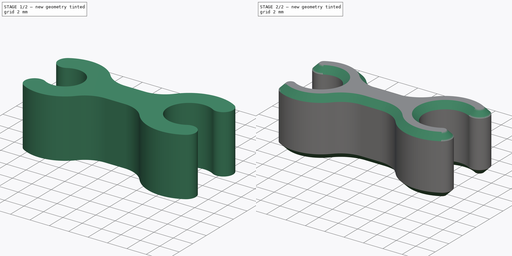
[diagram: build sequence overview — one tinted view per stage of 2, left to right]
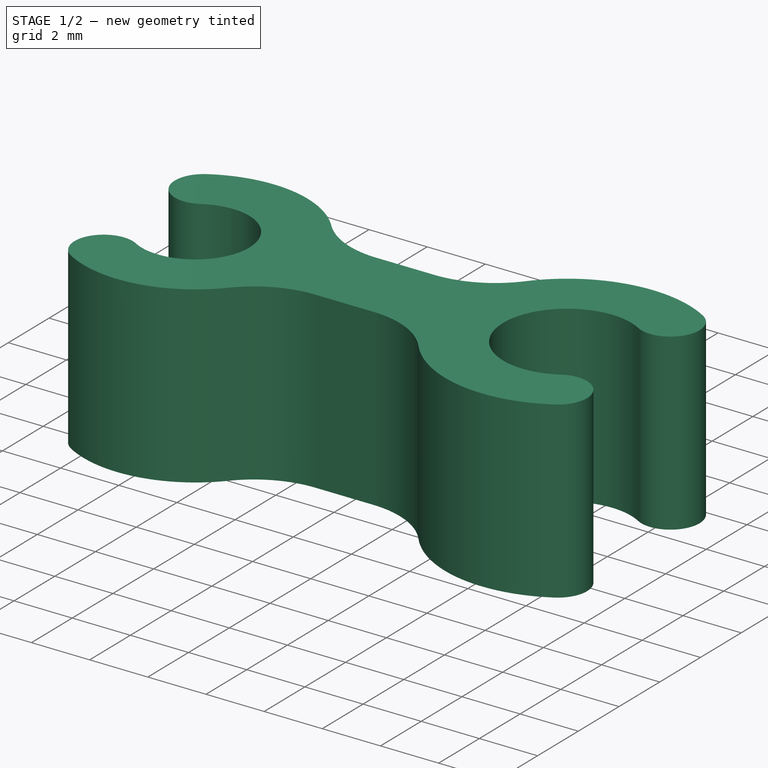
[diagram: stage 1 of 2 — iso view after this stage's code; geometry added in this stage tinted green]
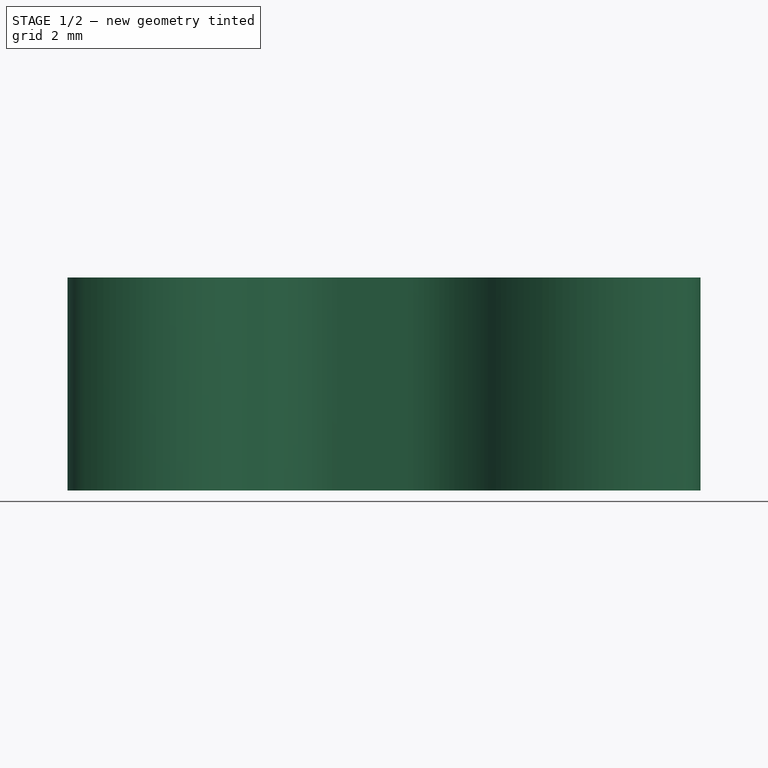
[diagram: stage 1 of 2 — front view after this stage's code; geometry added in this stage tinted green]
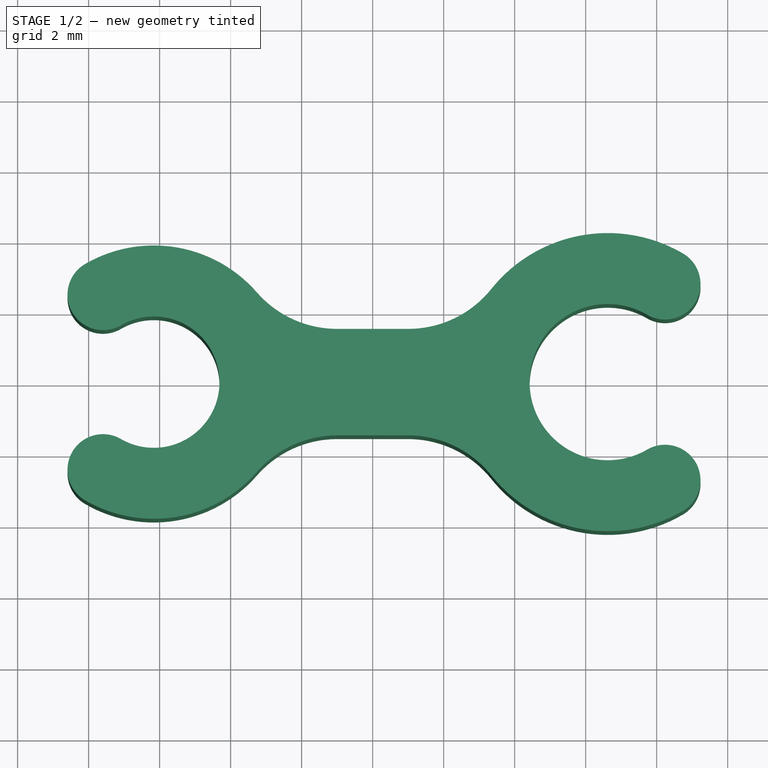
[diagram: stage 1 of 2 — top view after this stage's code; geometry added in this stage tinted green]
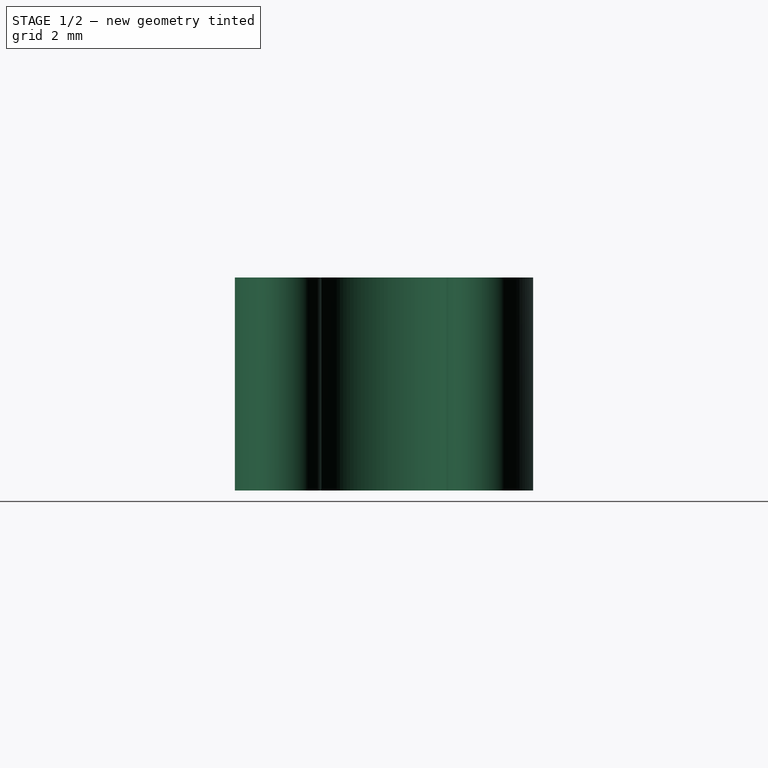
[diagram: stage 1 of 2 — right view after this stage's code; geometry added in this stage tinted green]
FCSTD DOCUMENT  (FreeCAD 0.19R21673 (Git))
Label: ptfe-camera
License: All rights reserved
LicenseURL: http://en.wikipedia.org/wiki/All_rights_reserved
objects: Sketcher::SketchObject×1, PartDesign::Pad×1, PartDesign::Chamfer×1, PartDesign::Body×1
note: 6 computed .brp shape members not serialized (recipe doc carries the construction recipe); baked Part::Feature solids carry a one-line shape summary decoded from their .brp

FEATURE [Sketcher::SketchObject] Sketch
  MapMode = 5
  Support = -> [XY_Plane]
  sketch-geometry (18):
    g0: Circle [constr] CenterX=6.6205 CenterY=0 CenterZ=0 NormalX=0 NormalY=0 NormalZ=1 AngleXU=0 Radius=2.2
    g1: Circle [constr] CenterX=-6.16454 CenterY=0 CenterZ=0 NormalX=0 NormalY=0 NormalZ=1 AngleXU=0 Radius=1.85
    g2: ArcOfCircle CenterX=8.23367 CenterY=2.76364 CenterZ=0 NormalX=0 NormalY=0 NormalZ=1 AngleXU=0 Radius=1 StartAngle=4.18403 EndAngle=7.32562
    g3: ArcOfCircle CenterX=8.23367 CenterY=-2.76364 CenterZ=0 NormalX=0 NormalY=0 NormalZ=1 AngleXU=0 Radius=1 StartAngle=5.24075 EndAngle=8.38234
    g4: ArcOfCircle CenterX=6.6205 CenterY=-8e-16 CenterZ=0 NormalX=0 NormalY=0 NormalZ=1 AngleXU=0 Radius=4.2 StartAngle=1.04244 EndAngle=2.46646
    g5: ArcOfCircle CenterX=6.6205 CenterY=0 CenterZ=0 NormalX=0 NormalY=0 NormalZ=1 AngleXU=0 Radius=4.2 StartAngle=3.81672 EndAngle=5.24075
    g6: LineSegment StartX=1 StartY=1.5 StartZ=0 EndX=-1 EndY=1.5 EndZ=0
    g7: LineSegment StartX=1 StartY=-1.5 StartZ=0 EndX=-1 EndY=-1.5 EndZ=0
    g8: ArcOfCircle CenterX=1 CenterY=4.5 CenterZ=0 NormalX=0 NormalY=0 NormalZ=1 AngleXU=0 Radius=3 StartAngle=4.71239 EndAngle=5.60805
    g9: ArcOfCircle CenterX=1 CenterY=-4.5 CenterZ=0 NormalX=0 NormalY=0 NormalZ=1 AngleXU=0 Radius=3 StartAngle=0.675132 EndAngle=1.5708
    g10: ArcOfCircle CenterX=-7.59526 CenterY=2.46486 CenterZ=0 NormalX=0 NormalY=0 NormalZ=1 AngleXU=0 Radius=1 StartAngle=2.09671 EndAngle=5.2383
    g11: ArcOfCircle CenterX=-7.59526 CenterY=-2.46486 CenterZ=0 NormalX=0 NormalY=0 NormalZ=1 AngleXU=0 Radius=1 StartAngle=1.04488 EndAngle=4.18647
    g12: ArcOfCircle CenterX=-6.16454 CenterY=0 CenterZ=0 NormalX=0 NormalY=0 NormalZ=1 AngleXU=0 Radius=1.85 StartAngle=4.18647 EndAngle=8.3799
    g13: ArcOfCircle CenterX=6.6205 CenterY=-8e-16 CenterZ=0 NormalX=0 NormalY=0 NormalZ=1 AngleXU=0 Radius=2.2 StartAngle=1.04244 EndAngle=5.24075
    g14: ArcOfCircle CenterX=-6.16454 CenterY=0 CenterZ=0 NormalX=0 NormalY=0 NormalZ=1 AngleXU=0 Radius=3.85 StartAngle=0.716745 EndAngle=2.09671
    g15: ArcOfCircle CenterX=-6.16454 CenterY=0 CenterZ=0 NormalX=0 NormalY=0 NormalZ=1 AngleXU=0 Radius=3.85 StartAngle=4.18647 EndAngle=5.56644
    g16: ArcOfCircle CenterX=-1 CenterY=-4.5 CenterZ=0 NormalX=0 NormalY=0 NormalZ=1 AngleXU=0 Radius=3 StartAngle=1.5708 EndAngle=2.42485
    g17: ArcOfCircle CenterX=-1 CenterY=4.5 CenterZ=0 NormalX=0 NormalY=0 NormalZ=1 AngleXU=0 Radius=3 StartAngle=3.85834 EndAngle=4.71239
  constraints (50):
    c: PointOnObject(g0,g-1)
    c: Diameter(g0) = 4.4
    c: PointOnObject(g1,g-1)
    c: Diameter(g1) = 3.7
    c: PointOnObject(g2,g0)
    c: Tangent(g0,g2)
    c: Diameter(g2) = 2
    c: PointOnObject(g3,g0)
    c: Diameter(g3) = 2
    c: Tangent(g3,g0)
    c: Vertical(g2,g3)
    c: Vertical(g3,g2)
    c: Tangent(g4,g2) = -1.5708
    c: Vertical(g5,g4)
    c: DistanceY(g3,g2) = 3.8
    c: Horizontal(g6)
    c: Symmetric(g6,g7,g-1)
    c: DistanceY(g7,g6) = 3
    c: Symmetric(g7,g6,g-1)
    c: Tangent(g8,g4) = 1.5708
    c: Tangent(g8,g6) = 1.5708
    c: Tangent(g9,g5) = 1.5708
    c: Tangent(g9,g7) = -1.5708
    c: PointOnObject(g10,g1)
    c: Coincident(g12,g1)
    c: Coincident(g12,g10)
    c: Coincident(g13,g4)
    c: Coincident(g13,g3)
    c: Tangent(g13,g2) = 1.5708
    c: Vertical(g11,g10)
    c: Vertical(g11,g10)
    c: Vertical(g11,g10)
    c: Tangent(g12,g11) = 1.5708
    c: Diameter(g11) = 2
    c: Coincident(g14,g12)
    c: Coincident(g15,g12)
    c: Coincident(g15,g11)
    c: Coincident(g17,g6)
    c: Vertical(g17,g16)
    c: Tangent(g16,g7) = -1.5708
    c: Tangent(g16,g15) = 1.5708
    c: Horizontal(g9,g16)
    c: Horizontal(g8,g17)
    c: Vertical(g6,g7)
    c: DistanceY(g16,g17) = 9
    c: DistanceX(g17,g8) = 2
    c: DistanceY(g11,g10) = 3.2
    c: Tangent(g14,g10) = -1.5708
    c: Tangent(g17,g14) = 1.5708
    c: Tangent(g5,g3) = -1.5708
FEATURE [PartDesign::Pad] Pad
  Length = 6
  Length2 = 100
  Profile = -> Sketch
  Refine = true
  Type = 0
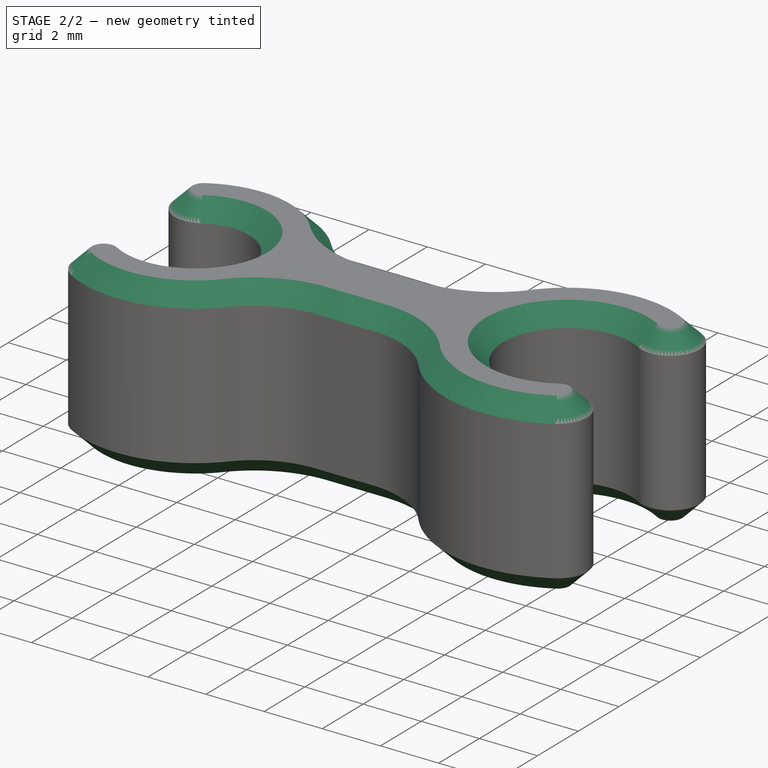
[diagram: stage 2 of 2 — iso view after this stage's code; geometry added in this stage tinted green]
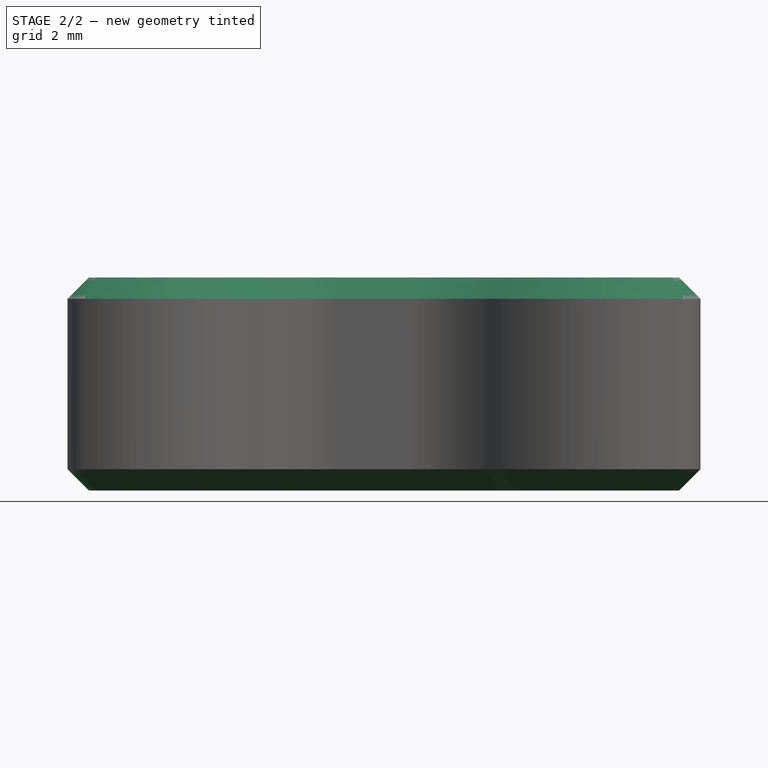
[diagram: stage 2 of 2 — front view after this stage's code; geometry added in this stage tinted green]
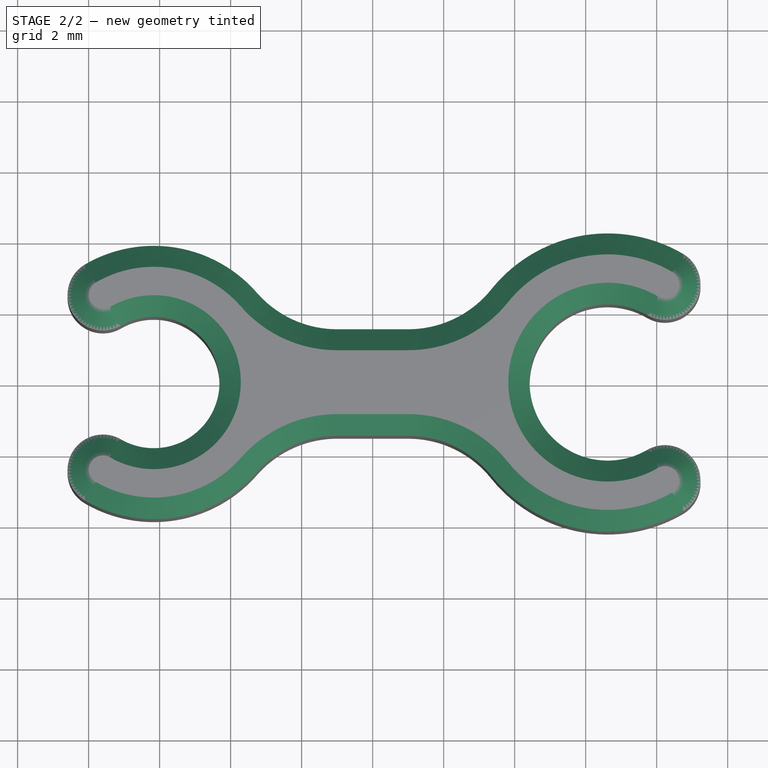
[diagram: stage 2 of 2 — top view after this stage's code; geometry added in this stage tinted green]
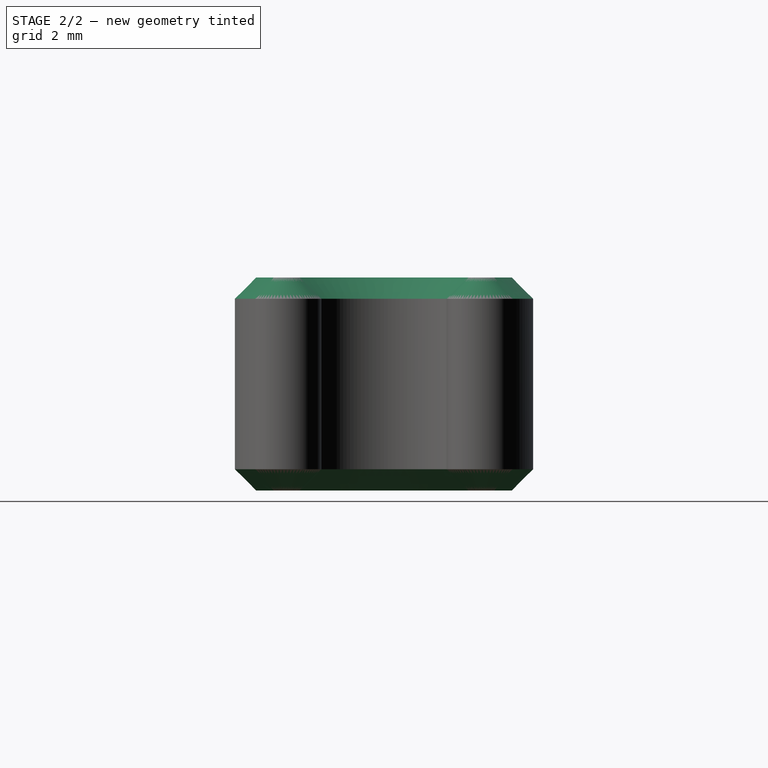
[diagram: stage 2 of 2 — right view after this stage's code; geometry added in this stage tinted green]
FEATURE [PartDesign::Chamfer] Chamfer
  Angle = 45
  Base = -> Pad [Edge37,Edge36]
  BaseFeature = -> Pad
  ChamferType = 0
  FlipDirection = false
  Refine = true
  Size = 0.6
  Size2 = 1
  SupportTransform = true
FEATURE [PartDesign::Body] Body
  Group = -> [Sketch,Pad,Chamfer]
  Origin = -> Origin
  Tip = -> Chamfer
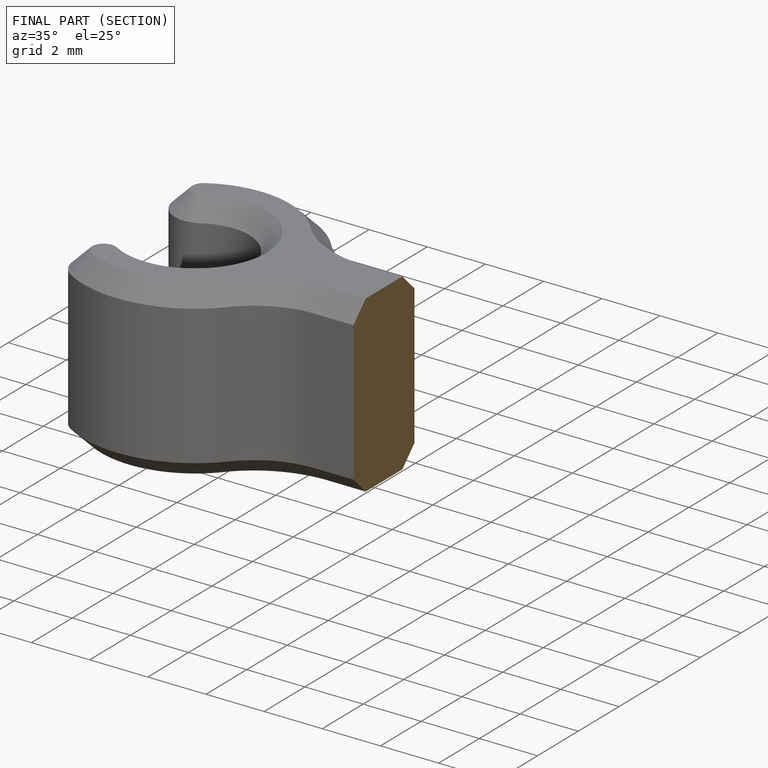
[diagram: finished part — half-section view (interior)]
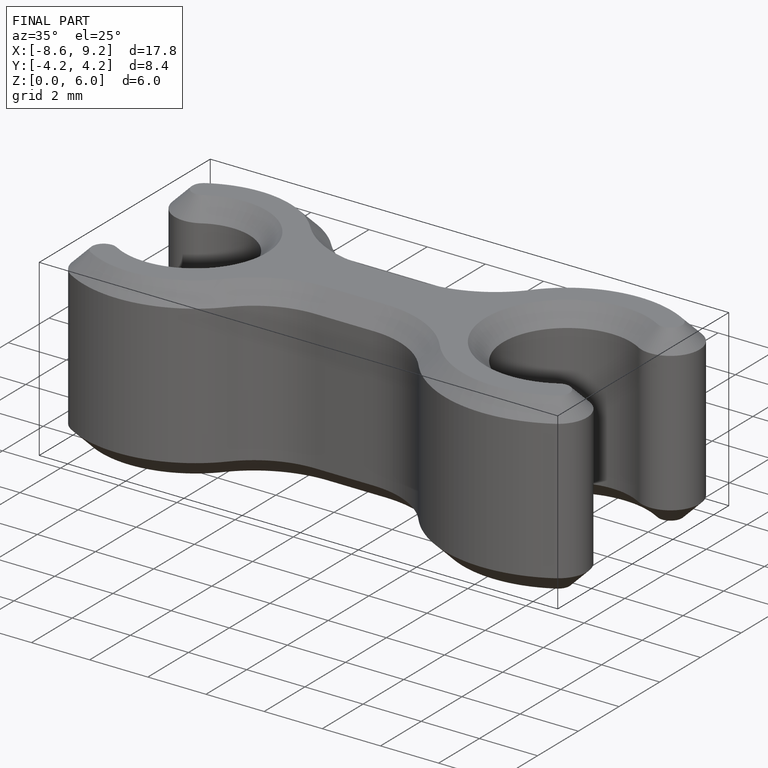
[diagram: finished part — iso view with bounding-box wireframe]
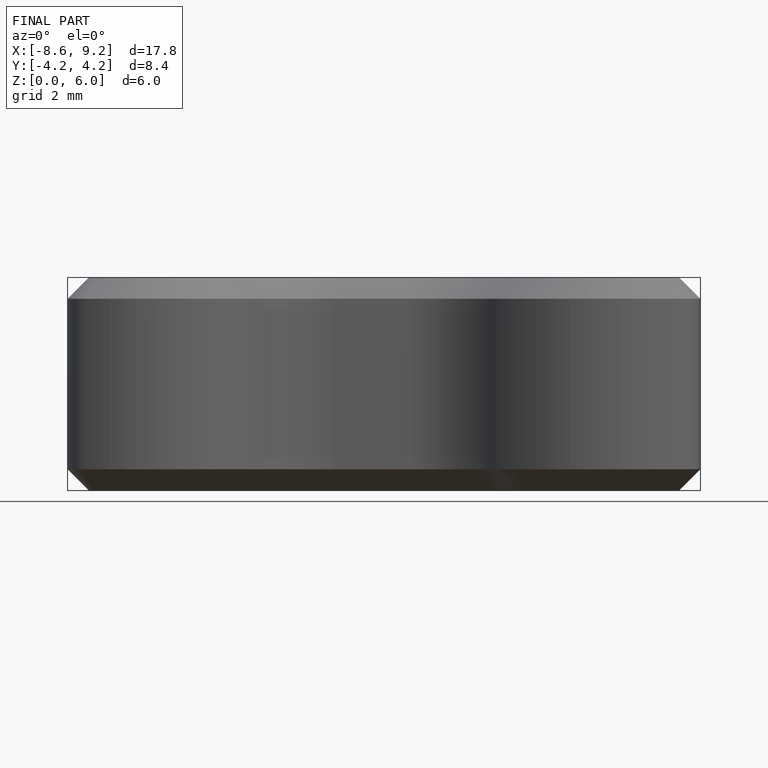
[diagram: finished part — front view with bounding-box wireframe]
